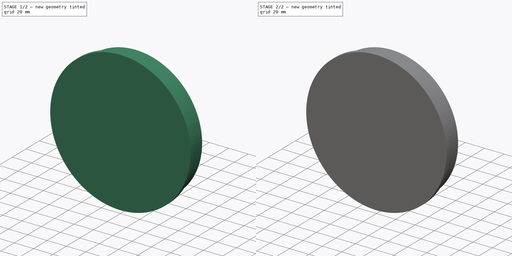
[diagram: build sequence overview — one tinted view per stage of 2, left to right]
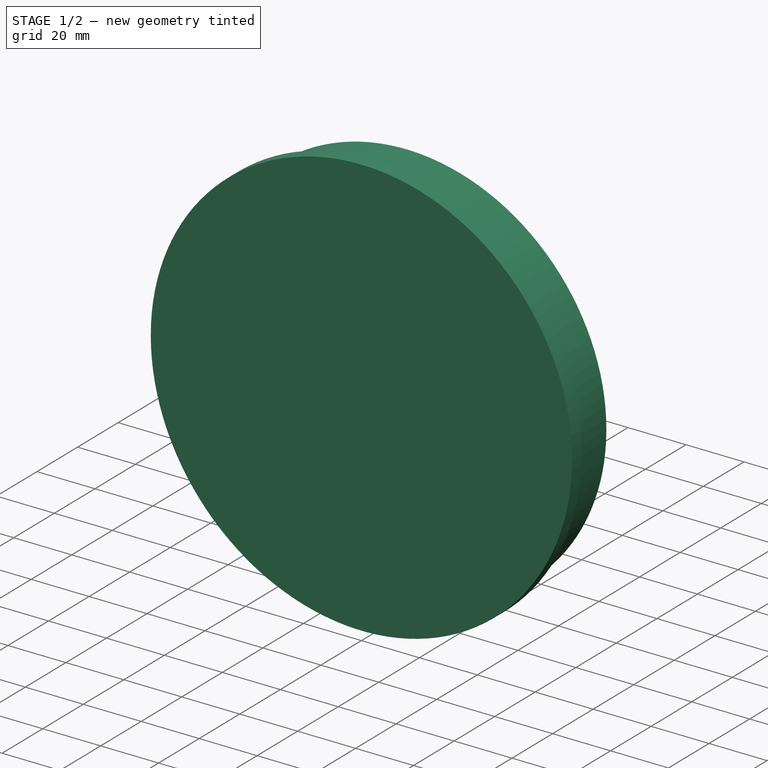
[diagram: stage 1 of 2 — iso view after this stage's code; geometry added in this stage tinted green]
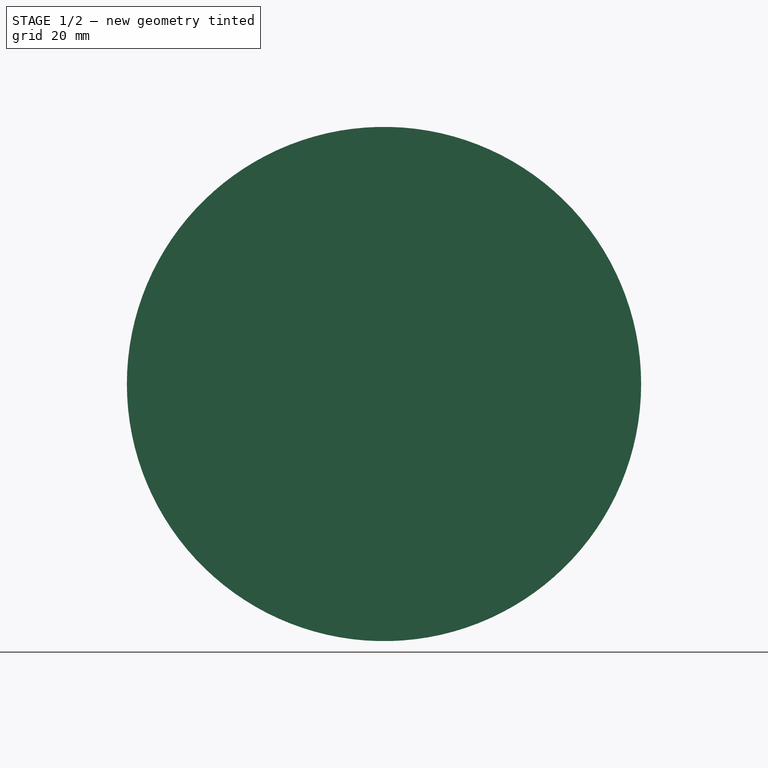
[diagram: stage 1 of 2 — front view after this stage's code; geometry added in this stage tinted green]
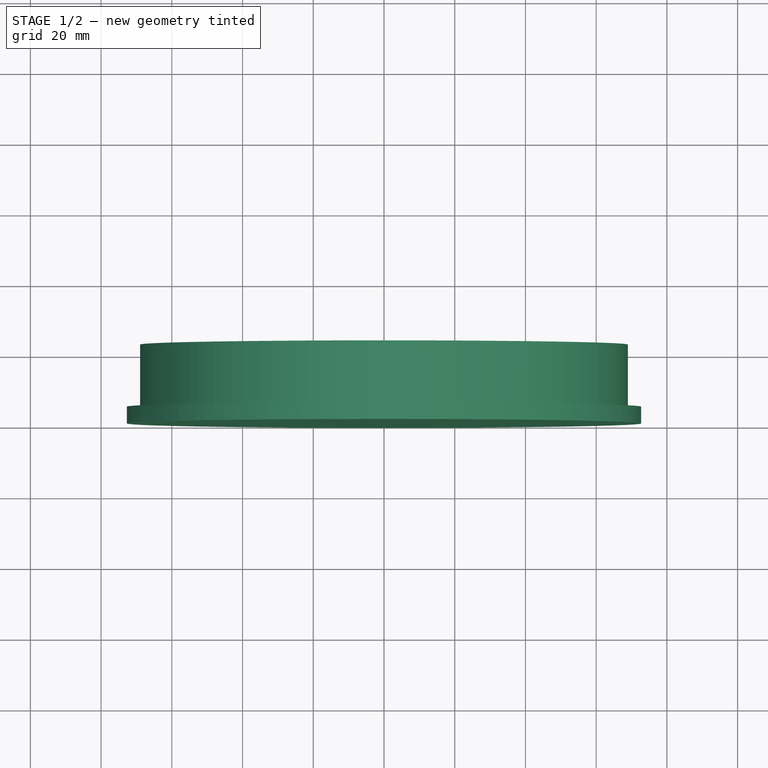
[diagram: stage 1 of 2 — top view after this stage's code; geometry added in this stage tinted green]
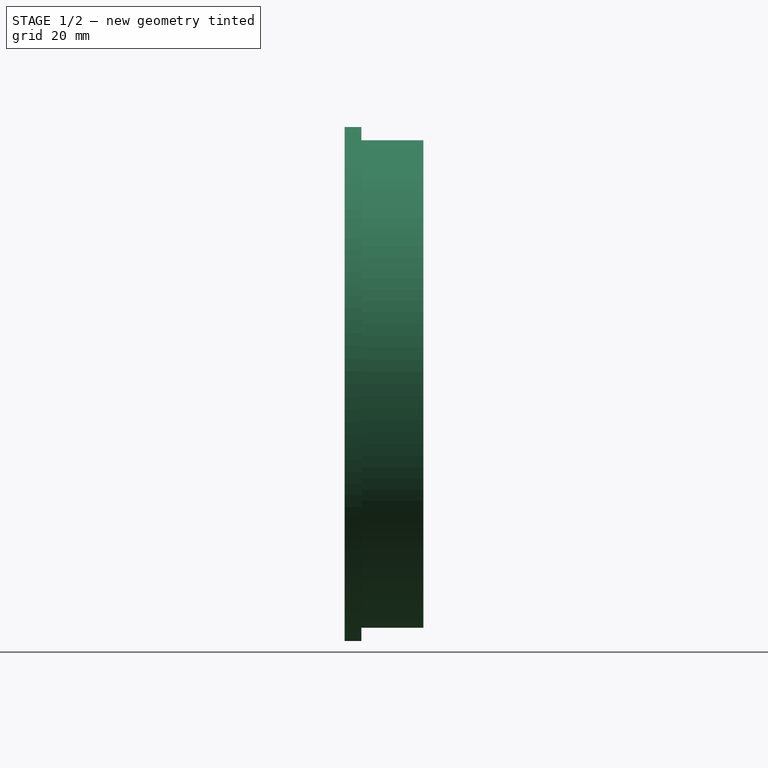
[diagram: stage 1 of 2 — right view after this stage's code; geometry added in this stage tinted green]
FCSTD DOCUMENT  (FreeCAD 0.21R33771 (Git))
Label: ex93
License: All rights reserved
LicenseURL: http://en.wikipedia.org/wiki/All_rights_reserved
objects: Sketcher::SketchObject×2, PartDesign::Revolution×1, PartDesign::Plane×1, PartDesign::Pad×1, PartDesign::Body×1
note: 8 computed .brp shape members not serialized (recipe doc carries the construction recipe); baked Part::Feature solids carry a one-line shape summary decoded from their .brp

FEATURE [Sketcher::SketchObject] Sketch
  FullyConstrained = true
  MapMode = 5
  Support = -> [XY_Plane]
  sketch-geometry (7):
    g0: LineSegment StartX=0 StartY=0 StartZ=0 EndX=68.71 EndY=0 EndZ=0
    g1: LineSegment StartX=68.96 StartY=4.73 StartZ=0 EndX=68.96 EndY=22.29 EndZ=0
    g2: LineSegment StartX=0 StartY=12.35 StartZ=0 EndX=0 EndY=0 EndZ=0
    g3: LineSegment StartX=68.71 StartY=0 StartZ=0 EndX=72.71 EndY=0 EndZ=0
    g4: LineSegment StartX=72.71 StartY=0 StartZ=0 EndX=72.71 EndY=4.73 EndZ=0
    g5: LineSegment StartX=72.71 StartY=4.73 StartZ=0 EndX=68.96 EndY=4.73 EndZ=0
    g6: ArcOfCircle CenterX=-0.838797 CenterY=262.349 CenterZ=0 NormalX=0 NormalY=0 NormalZ=1 AngleXU=0 Radius=250 StartAngle=4.71574 EndAngle=4.99534
  constraints (21):
    c: Coincident(g2,g0)
    c: Horizontal(g0)
    c: Vertical(g1)
    c: Vertical(g2)
    c: Coincident(g0,g-1)
    c: Coincident(g3,g4)
    c: Coincident(g4,g5)
    c: Horizontal(g3)
    c: Horizontal(g5)
    c: Vertical(g4)
    c: Coincident(g3,g0)
    c: Coincident(g6,g1)
    c: Coincident(g2,g6)
    c: Coincident(g1,g5)
    c: DistanceY(g2,g2) = 12.35
    c: DistanceY(g1,g1) = 17.56
    c: DistanceX(g0,g0) = 68.71
    c: DistanceX(g-2,g1) = 68.96
    c: DistanceX(g5,g5) = 3.75
    c: DistanceY(g4,g4) = 4.73
    c: Radius(g6) = 250
FEATURE [PartDesign::Revolution] Revolution
  Angle = 360
  Axis = (0,1,0)
  Base = (0,0,0)
  Profile = -> Sketch
  ReferenceAxis = -> Sketch [V_Axis]
  Refine = true
  Reversed = true
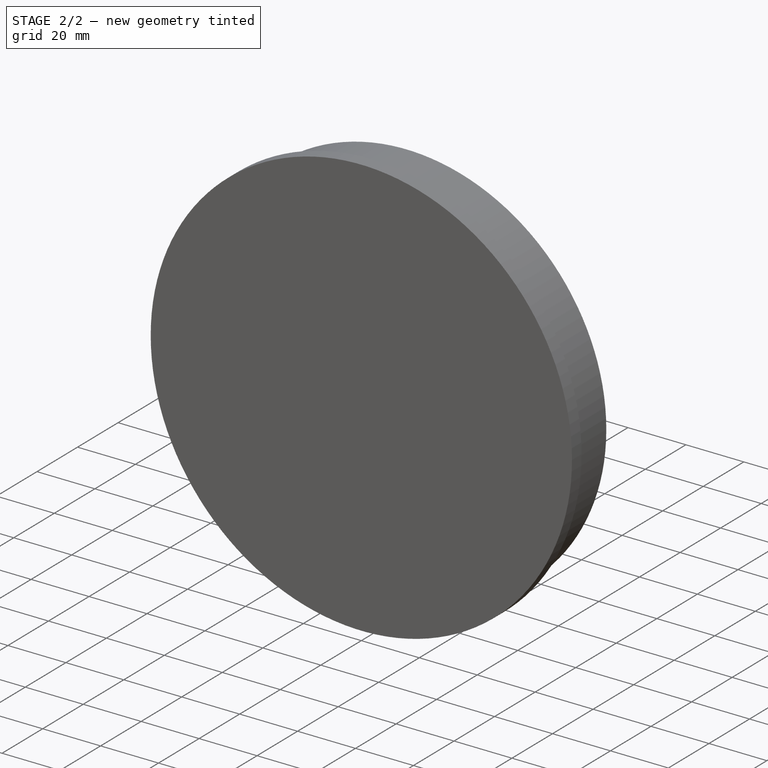
[diagram: stage 2 of 2 — iso view after this stage's code; geometry added in this stage tinted green]
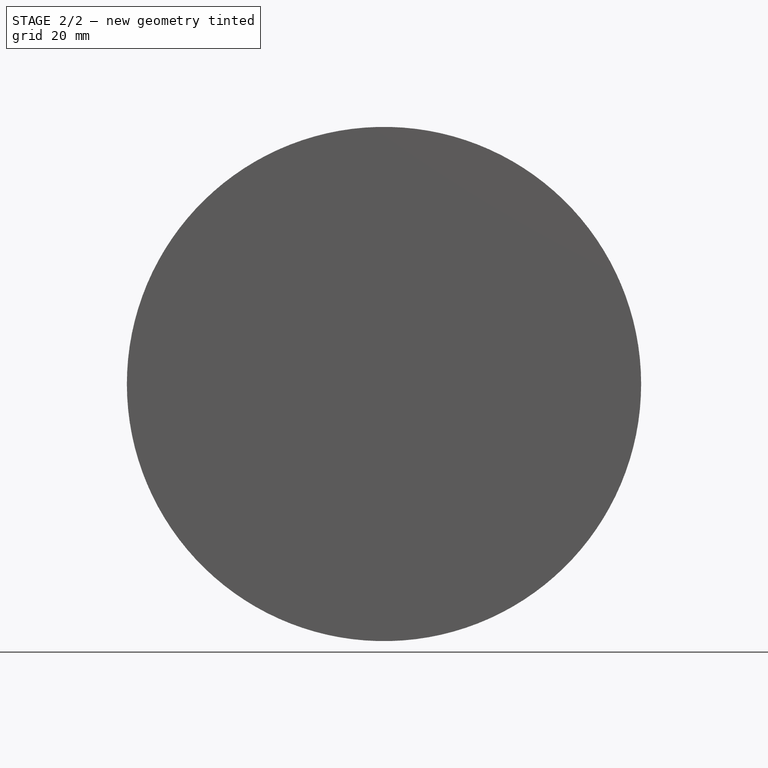
[diagram: stage 2 of 2 — front view after this stage's code; geometry added in this stage tinted green]
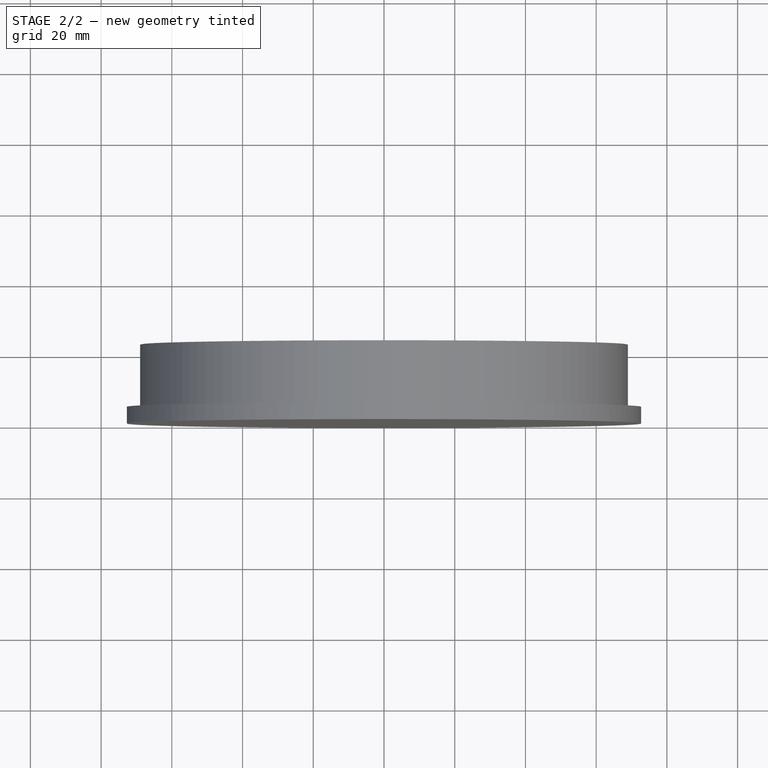
[diagram: stage 2 of 2 — top view after this stage's code; geometry added in this stage tinted green]
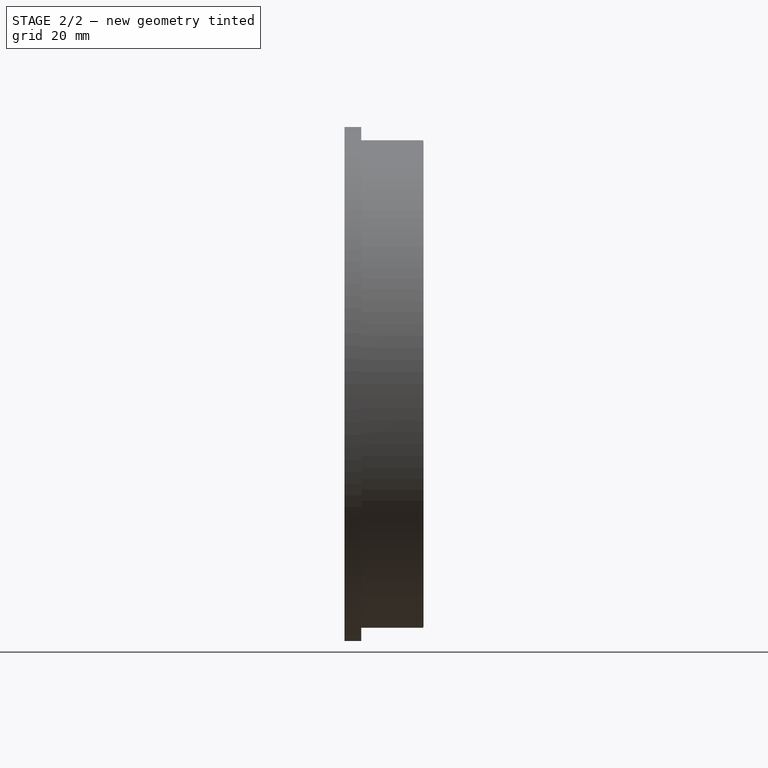
[diagram: stage 2 of 2 — right view after this stage's code; geometry added in this stage tinted green]
FEATURE [PartDesign::Plane] DatumPlane
  AttachmentOffset = pos=(0,0,-5) rot=(0,0,1;0rad)
  Length = 174.454
  MapMode = 45
  Placement = pos=(6.9e-15,12.3589,1e-15) rot=(0,0.707107,0.707107;3.14159rad)
  ResizeMode = 0
  Support = -> [Revolution]
  Width = 173.958
FEATURE [Sketcher::SketchObject] Sketch001
  AttachmentOffset = pos=(0,0,-8) rot=(0,0,1;0rad)
  FullyConstrained = false
  MapMode = 5
  Placement = pos=(6.5e-15,4.35888,2.7e-15) rot=(0,0.707107,0.707107;3.14159rad)
  Support = -> [DatumPlane]
  sketch-geometry (16):
    g0: LineSegment StartX=33.5185 StartY=-46.1343 StartZ=0 EndX=54.2341 EndY=17.6217 EndZ=0
    g1: LineSegment StartX=54.2341 StartY=17.6217 StartZ=0 EndX=0 EndY=57.0251 EndZ=0
    g2: LineSegment StartX=0 StartY=57.0251 StartZ=0 EndX=-54.2341 EndY=17.6217 EndZ=0
    g3: LineSegment StartX=-54.2341 StartY=17.6217 StartZ=0 EndX=-33.5185 EndY=-46.1343 EndZ=0
    g4: LineSegment StartX=-33.5185 StartY=-46.1343 StartZ=0 EndX=33.5185 EndY=-46.1343 EndZ=0
    g5: ArcOfCircle CenterX=0 CenterY=0 CenterZ=0 NormalX=0 NormalY=0 NormalZ=1 AngleXU=0 Radius=57.0251 StartAngle=0.65789 EndAngle=1.22707
    g6: ArcOfCircle CenterX=0 CenterY=57.0251 CenterZ=0 NormalX=0 NormalY=0 NormalZ=1 AngleXU=0 Radius=19.5049 StartAngle=3.31346 EndAngle=6.11132
    g7: ArcOfCircle CenterX=-54.2341 CenterY=17.6217 CenterZ=0 NormalX=0 NormalY=0 NormalZ=1 AngleXU=0 Radius=19.5049 StartAngle=4.57009 EndAngle=7.36796
    g8: ArcOfCircle CenterX=-33.5185 CenterY=-46.1343 CenterZ=0 NormalX=0 NormalY=0 NormalZ=1 AngleXU=0 Radius=19.5049 StartAngle=5.82673 EndAngle=8.62459
    g9: ArcOfCircle CenterX=33.5185 CenterY=-46.1343 CenterZ=0 NormalX=0 NormalY=0 NormalZ=1 AngleXU=0 Radius=19.5049 StartAngle=0.800184 EndAngle=3.59805
    g10: ArcOfCircle CenterX=54.2341 CenterY=17.6217 CenterZ=0 NormalX=0 NormalY=0 NormalZ=1 AngleXU=0 Radius=19.5049 StartAngle=2.05682 EndAngle=4.85468
    g11: ArcOfCircle CenterX=0 CenterY=0 CenterZ=0 NormalX=0 NormalY=0 NormalZ=1 AngleXU=0 Radius=57.0251 StartAngle=5.68444 EndAngle=6.25361
    g12: ArcOfCircle CenterX=0 CenterY=0 CenterZ=0 NormalX=0 NormalY=0 NormalZ=1 AngleXU=0 Radius=57.0251 StartAngle=4.4278 EndAngle=4.99698
    g13: ArcOfCircle CenterX=0 CenterY=0 CenterZ=0 NormalX=0 NormalY=0 NormalZ=1 AngleXU=0 Radius=57.0251 StartAngle=1.91453 EndAngle=2.4837
    g14: ArcOfCircle CenterX=0 CenterY=0 CenterZ=0 NormalX=0 NormalY=0 NormalZ=1 AngleXU=0 Radius=57.0251 StartAngle=3.17116 EndAngle=3.74034
    g15: Circle CenterX=0 CenterY=0 CenterZ=0 NormalX=0 NormalY=0 NormalZ=1 AngleXU=0 Radius=68.6157
  constraints (42):
    c: Coincident(g0,g1)
    c: Coincident(g1,g2)
    c: Coincident(g2,g3)
    c: Coincident(g3,g4)
    c: Coincident(g4,g0)
    c: Equal(g0, g1-g4) x4
    c: PointOnObject(g2,g5)
    c: PointOnObject(g4,g5)
    c: Coincident(g5,g-1)
    c: PointOnObject(g1,g-2)
    c: Coincident(g6,g1)
    c: Coincident(g7,g2)
    c: Coincident(g8,g3)
    c: Coincident(g9,g0)
    c: Coincident(g10,g0)
    c: Equal(g6,g10)
    c: Equal(g10,g9)
    c: Equal(g9,g8)
    c: Equal(g8,g7)
    c: PointOnObject(g6,g5)
    c: PointOnObject(g7,g5)
    c: PointOnObject(g7,g5)
    c: PointOnObject(g8,g5)
    c: Coincident(g5,g10)
    c: Coincident(g11,g10)
    c: Equal(g5,g11)
    c: Coincident(g11,g9)
    c: Coincident(g5,g11)
    c: Coincident(g12,g9)
    c: Equal(g5,g12)
    c: Coincident(g12,g8)
    c: Coincident(g5,g12)
    c: Equal(g5,g13)
    c: Coincident(g5,g6)
    c: Coincident(g5,g13)
    c: PointOnObject(g13,g6)
    c: Equal(g13,g14)
    c: PointOnObject(g13,g7)
    c: Coincident(g13,g14)
    c: PointOnObject(g14,g7)
    c: PointOnObject(g14,g8)
    c: Coincident(g15,g5)
FEATURE [PartDesign::Pad] Pad
  BaseFeature = -> Revolution
  Direction = (0,1,-2e-16)
  Length = 18
  Length2 = 10
  Profile = -> Sketch001
  ReferenceAxis = -> Sketch001 [N_Axis]
  Refine = true
  Type = 0
FEATURE [PartDesign::Body] Body
  Group = -> [Sketch,Revolution,DatumPlane,Sketch001,Pad]
  Origin = -> Origin
  Tip = -> Pad
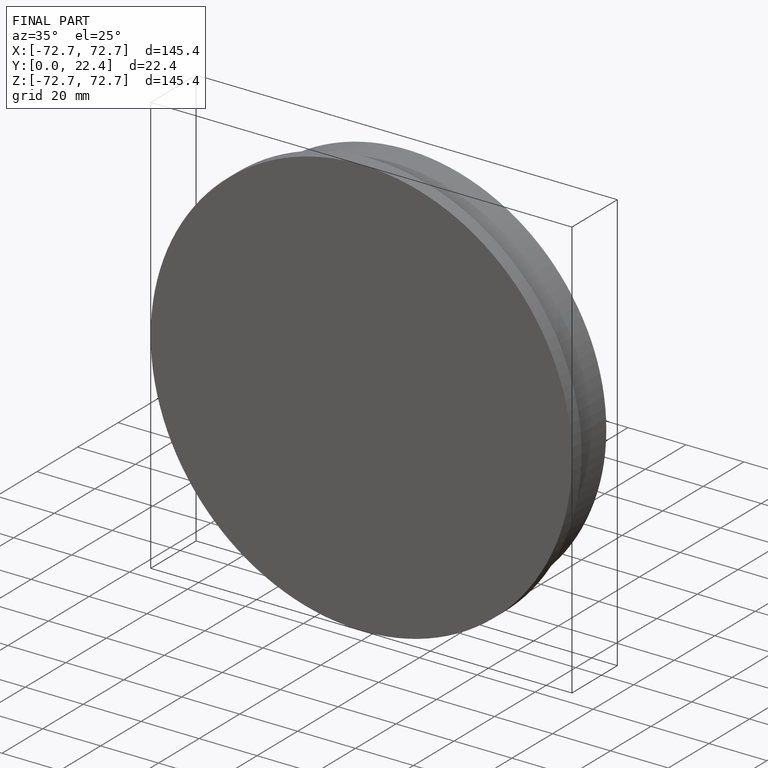
[diagram: finished part — iso view with bounding-box wireframe]
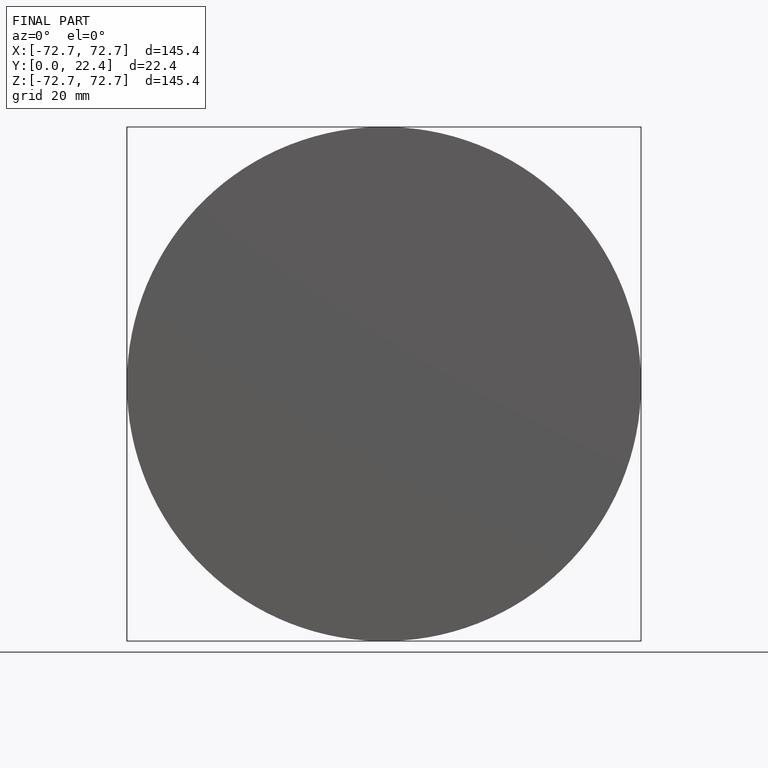
[diagram: finished part — front view with bounding-box wireframe]
